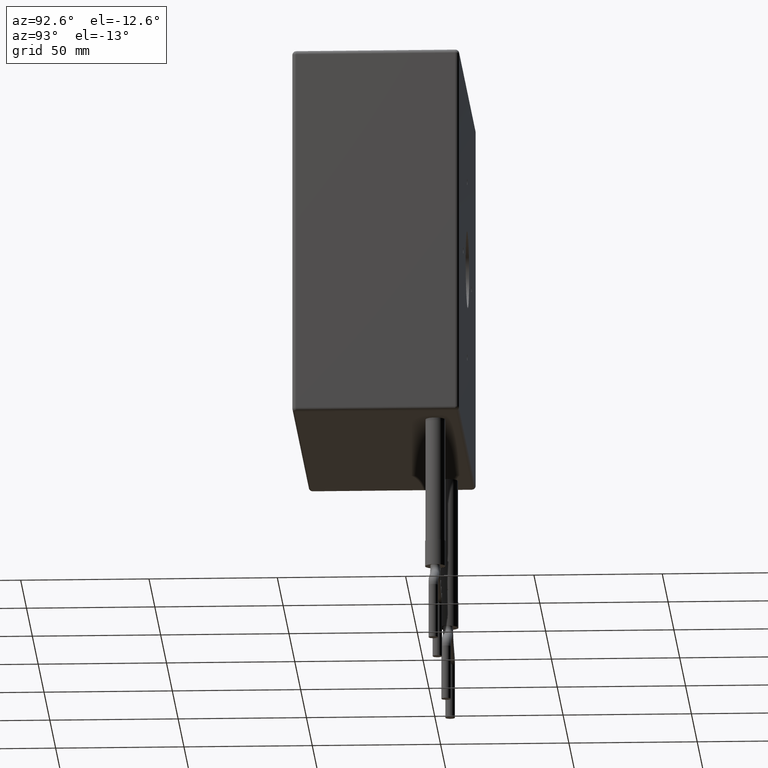
[diagram: clean part render]
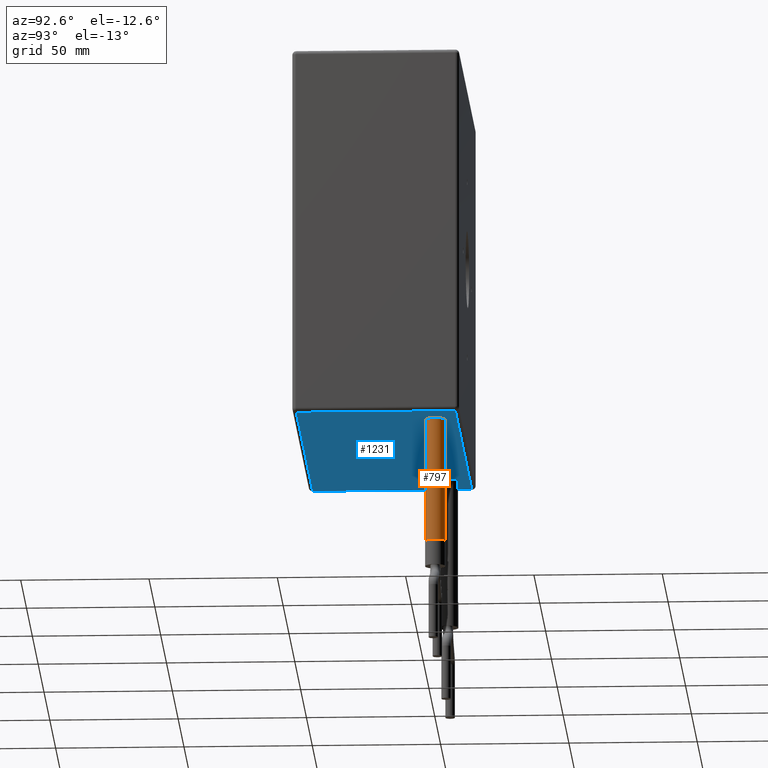
[diagram: same view with the hole feature highlighted: cylindrical wall and planar end face, labeled with their STEP entity ids]
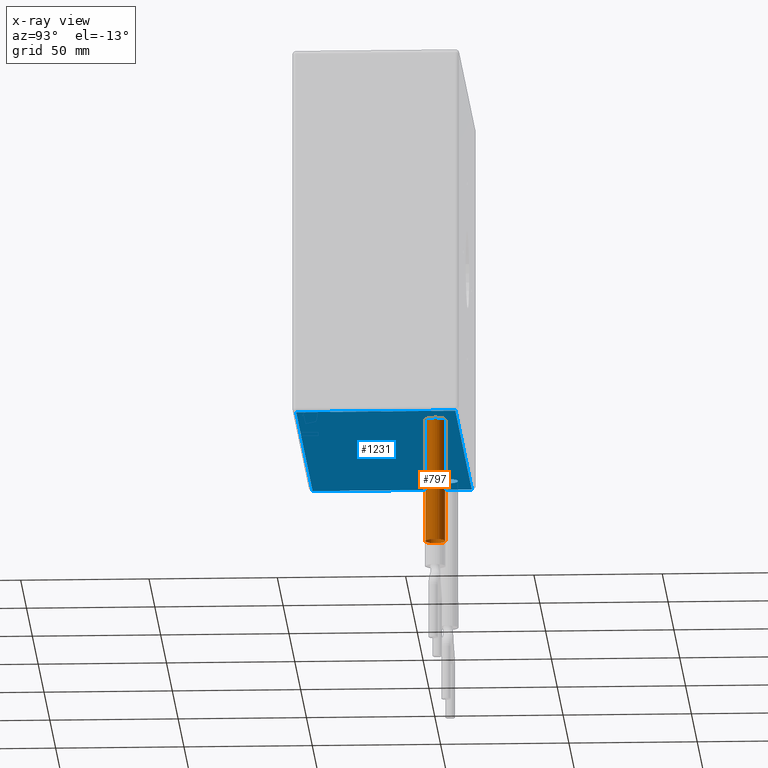
[diagram: x-ray of the same camera — body ghosted, the hole faces saturated]
A machine part, auxiliary view. The highlighted faces form one hole feature of diameter 7.7 mm: the cylindrical wall (entity #797, orange) and its adjacent planar end face (entity #1231, blue) — they share a circular edge in the B-rep.
The next image is the same camera in x-ray (body ghosted, the hole faces saturated) — the bore reads through the body.
Wall:
#20 = EDGE_CURVE ( 'NONE', #704, #704, #1892, .T. ) ;
#82 = AXIS2_PLACEMENT_3D ( 'NONE', #821, #1834, #964 ) ;
#152 = CARTESIAN_POINT ( 'NONE',  ( 54.99999999999999300, 55.00000000000000700, -120.5000000000000000 ) ) ;
#306 = DIRECTION ( 'NONE',  ( -1.000000000000000000, 0.0000000000000000000, 0.0000000000000000000 ) ) ;
#699 = DIRECTION ( 'NONE',  ( 1.000000000000000000, 0.0000000000000000000, 0.0000000000000000000 ) ) ;
#704 = VERTEX_POINT ( 'NONE', #1365 ) ;
#706 = AXIS2_PLACEMENT_3D ( 'NONE', #1720, #1278, #699 ) ;
#738 = CARTESIAN_POINT ( 'NONE',  ( 51.14999999999999100, 55.00000000000000700, -72.00000000000001400 ) ) ;
#797 = ADVANCED_FACE ( 'NONE', ( #1507, #1852 ), #1074, .T. ) ;
#802 = EDGE_LOOP ( 'NONE', ( #1626 ) ) ;
#821 = CARTESIAN_POINT ( 'NONE',  ( 54.99999999999999300, 55.00000000000000700, -72.00000000000001400 ) ) ;
#918 = EDGE_LOOP ( 'NONE', ( #1572 ) ) ;
#964 = DIRECTION ( 'NONE',  ( -1.000000000000000000, 0.0000000000000000000, 0.0000000000000000000 ) ) ;
#1043 = AXIS2_PLACEMENT_3D ( 'NONE', #152, #1211, #306 ) ;
#1074 = CYLINDRICAL_SURFACE ( 'NONE', #706, 3.849999999999999200 ) ;
#1162 = CIRCLE ( 'NONE', #82, 3.849999999999999200 ) ;
#1211 = DIRECTION ( 'NONE',  ( -0.0000000000000000000, -0.0000000000000000000, 1.000000000000000000 ) ) ;
#1278 = DIRECTION ( 'NONE',  ( -0.0000000000000000000, -0.0000000000000000000, 1.000000000000000000 ) ) ;
#1343 = EDGE_CURVE ( 'NONE', #1458, #1458, #1162, .T. ) ;
#1365 = CARTESIAN_POINT ( 'NONE',  ( 51.14999999999999100, 55.00000000000000700, -120.5000000000000000 ) ) ;
#1458 = VERTEX_POINT ( 'NONE', #738 ) ;
#1507 = FACE_OUTER_BOUND ( 'NONE', #918, .T. ) ;
#1572 = ORIENTED_EDGE ( 'NONE', *, *, #1343, .T. ) ;
#1626 = ORIENTED_EDGE ( 'NONE', *, *, #20, .T. ) ;
#1720 = CARTESIAN_POINT ( 'NONE',  ( 54.99999999999999300, 55.00000000000000700, -131.3894444302728500 ) ) ;
#1834 = DIRECTION ( 'NONE',  ( 0.0000000000000000000, 0.0000000000000000000, -1.000000000000000000 ) ) ;
#1852 = FACE_OUTER_BOUND ( 'NONE', #802, .T. ) ;
#1892 = CIRCLE ( 'NONE', #1043, 3.849999999999999200 ) ;
End face:
#66 = FACE_BOUND ( 'NONE', #396, .T. ) ;
#82 = AXIS2_PLACEMENT_3D ( 'NONE', #821, #1834, #964 ) ;
#97 = CARTESIAN_POINT ( 'NONE',  ( -70.49999999999998600, 63.50000000000001400, -72.00000000000001400 ) ) ;
#167 = CARTESIAN_POINT ( 'NONE',  ( -71.99999999999998600, 50.00000000000001400, -72.00000000000001400 ) ) ;
#190 = VECTOR ( 'NONE', #1303, 1000.000000000000000 ) ;
#269 = EDGE_LOOP ( 'NONE', ( #1628 ) ) ;
#318 = PLANE ( 'NONE',  #1314 ) ;
#325 = EDGE_CURVE ( 'NONE', #1057, #357, #1076, .T. ) ;
#357 = VERTEX_POINT ( 'NONE', #990 ) ;
#372 = ORIENTED_EDGE ( 'NONE', *, *, #1065, .F. ) ;
#396 = EDGE_LOOP ( 'NONE', ( #372 ) ) ;
#433 = CARTESIAN_POINT ( 'NONE',  ( 70.50000000000000000, 63.50000000000001400, -72.00000000000001400 ) ) ;
#441 = CARTESIAN_POINT ( 'NONE',  ( -54.99999999999999300, 55.00000000000000700, -72.00000000000001400 ) ) ;
#458 = FACE_BOUND ( 'NONE', #269, .T. ) ;
#483 = DIRECTION ( 'NONE',  ( -1.000000000000000000, 0.0000000000000000000, -0.0000000000000000000 ) ) ;
#512 = CARTESIAN_POINT ( 'NONE',  ( 70.50000000000000000, 50.00000000000001400, -72.00000000000001400 ) ) ;
#513 = ORIENTED_EDGE ( 'NONE', *, *, #1612, .T. ) ;
#595 = DIRECTION ( 'NONE',  ( -1.000000000000000000, 0.0000000000000000000, 0.0000000000000000000 ) ) ;
#692 = VECTOR ( 'NONE', #1830, 1000.000000000000000 ) ;
#710 = CARTESIAN_POINT ( 'NONE',  ( 72.00000000000001400, 63.50000000000001400, -72.00000000000001400 ) ) ;
#738 = CARTESIAN_POINT ( 'NONE',  ( 51.14999999999999100, 55.00000000000000700, -72.00000000000001400 ) ) ;
#767 = VERTEX_POINT ( 'NONE', #1823 ) ;
#821 = CARTESIAN_POINT ( 'NONE',  ( 54.99999999999999300, 55.00000000000000700, -72.00000000000001400 ) ) ;
#828 = FACE_OUTER_BOUND ( 'NONE', #1690, .T. ) ;
#830 = EDGE_CURVE ( 'NONE', #896, #1057, #1427, .T. ) ;
#857 = ORIENTED_EDGE ( 'NONE', *, *, #325, .T. ) ;
#892 = VERTEX_POINT ( 'NONE', #1734 ) ;
#896 = VERTEX_POINT ( 'NONE', #97 ) ;
#931 = DIRECTION ( 'NONE',  ( 0.0000000000000000000, 0.0000000000000000000, -1.000000000000000000 ) ) ;
#964 = DIRECTION ( 'NONE',  ( -1.000000000000000000, 0.0000000000000000000, 0.0000000000000000000 ) ) ;
#990 = CARTESIAN_POINT ( 'NONE',  ( 70.50000000000000000, 1.499999999999987600, -72.00000000000001400 ) ) ;
#1031 = VECTOR ( 'NONE', #1731, 1000.000000000000000 ) ;
#1057 = VERTEX_POINT ( 'NONE', #433 ) ;
#1065 = EDGE_CURVE ( 'NONE', #767, #767, #1482, .T. ) ;
#1076 = LINE ( 'NONE', #512, #692 ) ;
#1095 = LINE ( 'NONE', #1879, #190 ) ;
#1121 = LINE ( 'NONE', #1532, #1886 ) ;
#1156 = AXIS2_PLACEMENT_3D ( 'NONE', #441, #1481, #595 ) ;
#1162 = CIRCLE ( 'NONE', #82, 3.849999999999999200 ) ;
#1230 = DIRECTION ( 'NONE',  ( -1.000000000000000000, 0.0000000000000000000, 0.0000000000000000000 ) ) ;
#1231 = ADVANCED_FACE ( 'NONE', ( #66, #828, #458 ), #318, .T. ) ;
#1268 = EDGE_CURVE ( 'NONE', #357, #892, #1121, .T. ) ;
#1290 = ORIENTED_EDGE ( 'NONE', *, *, #1268, .T. ) ;
#1303 = DIRECTION ( 'NONE',  ( 0.0000000000000000000, 1.000000000000000000, 0.0000000000000000000 ) ) ;
#1314 = AXIS2_PLACEMENT_3D ( 'NONE', #167, #931, #483 ) ;
#1343 = EDGE_CURVE ( 'NONE', #1458, #1458, #1162, .T. ) ;
#1427 = LINE ( 'NONE', #710, #1031 ) ;
#1458 = VERTEX_POINT ( 'NONE', #738 ) ;
#1481 = DIRECTION ( 'NONE',  ( 0.0000000000000000000, 0.0000000000000000000, -1.000000000000000000 ) ) ;
#1482 = CIRCLE ( 'NONE', #1156, 3.849999999999999200 ) ;
#1520 = ORIENTED_EDGE ( 'NONE', *, *, #830, .T. ) ;
#1532 = CARTESIAN_POINT ( 'NONE',  ( -71.99999999999998600, 1.499999999999987600, -72.00000000000001400 ) ) ;
#1612 = EDGE_CURVE ( 'NONE', #892, #896, #1095, .T. ) ;
#1628 = ORIENTED_EDGE ( 'NONE', *, *, #1343, .F. ) ;
#1690 = EDGE_LOOP ( 'NONE', ( #857, #1290, #513, #1520 ) ) ;
#1731 = DIRECTION ( 'NONE',  ( 1.000000000000000000, -0.0000000000000000000, -0.0000000000000000000 ) ) ;
#1734 = CARTESIAN_POINT ( 'NONE',  ( -70.49999999999998600, 1.499999999999987600, -72.00000000000001400 ) ) ;
#1823 = CARTESIAN_POINT ( 'NONE',  ( -58.84999999999999400, 55.00000000000000700, -72.00000000000001400 ) ) ;
#1830 = DIRECTION ( 'NONE',  ( -0.0000000000000000000, -1.000000000000000000, -0.0000000000000000000 ) ) ;
#1834 = DIRECTION ( 'NONE',  ( 0.0000000000000000000, 0.0000000000000000000, -1.000000000000000000 ) ) ;
#1879 = CARTESIAN_POINT ( 'NONE',  ( -70.49999999999998600, 50.00000000000001400, -72.00000000000001400 ) ) ;
#1886 = VECTOR ( 'NONE', #1230, 1000.000000000000000 ) ;